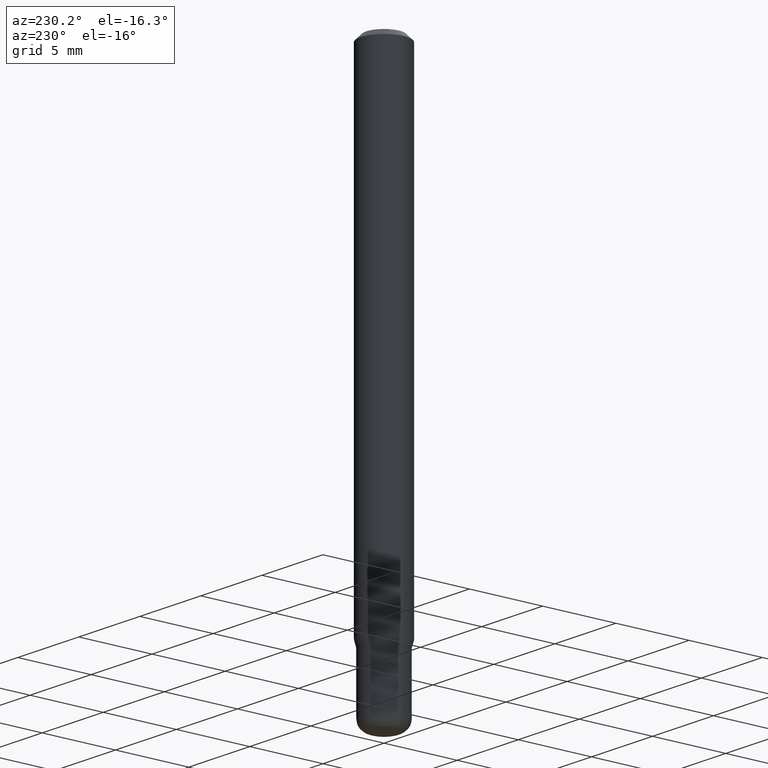
[diagram: clean part render]
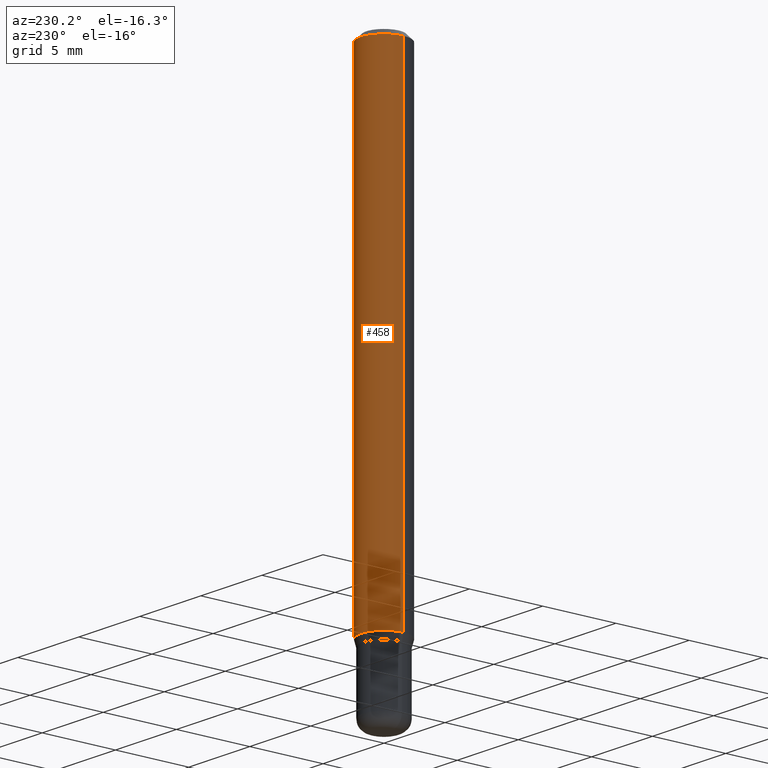
[diagram: same view with one face highlighted and labeled with its STEP entity id]
A machine part, auxiliary view. The second image highlights one B-rep face of the part: STEP entity #458.
In plain terms, the highlighted cylindrical surface (edge-blend (fillet) strip) has radius 1.5875 mm, axis along (-0, 0, 1).
Its self-contained STEP definition (entity closure, byte-faithful):
#2 = DIRECTION ( 'NONE',  ( -2.445468806185136597E-29, 3.491481338843145583E-15, 1.000000000000000000 ) ) ;
#4 = LINE ( 'NONE', #340, #284 ) ;
#18 = DIRECTION ( 'NONE',  ( -2.445468806185136597E-29, 3.491481338843145583E-15, 1.000000000000000000 ) ) ;
#31 = CARTESIAN_POINT ( 'NONE',  ( 0.000000000000000000, 0.000000000000000000, 0.000000000000000000 ) ) ;
#48 = CARTESIAN_POINT ( 'NONE',  ( -0.06250000000000000000, -1.848661397443869877E-15, -0.01499999999999970281 ) ) ;
#57 = VERTEX_POINT ( 'NONE', #372 ) ;
#63 = EDGE_CURVE ( 'NONE', #420, #277, #449, .T. ) ;
#80 = CARTESIAN_POINT ( 'NONE',  ( 3.175049348580787854E-29, -4.533128994505219090E-15, -1.298339745962156178 ) ) ;
#82 = CARTESIAN_POINT ( 'NONE',  ( 0.06250000000000000000, -4.969564161860609971E-15, -1.298339745962156178 ) ) ;
#97 = EDGE_LOOP ( 'NONE', ( #369, #268, #312, #221 ) ) ;
#101 = CIRCLE ( 'NONE', #514, 0.06250000000000000000 ) ;
#114 = DIRECTION ( 'NONE',  ( 1.000000000000000000, -6.982962677686266711E-15, 4.876176775795935793E-29 ) ) ;
#119 = DIRECTION ( 'NONE',  ( -2.445468806185136877E-29, 3.491481338843145188E-15, 1.000000000000000000 ) ) ;
#130 = DIRECTION ( 'NONE',  ( 1.000000000000000000, -6.982962677686266711E-15, 0.000000000000000000 ) ) ;
#139 = EDGE_CURVE ( 'NONE', #420, #57, #101, .T. ) ;
#158 = CARTESIAN_POINT ( 'NONE',  ( 0.06250000000000000000, -4.888073874380378612E-16, -0.01499999999999970281 ) ) ;
#192 = DIRECTION ( 'NONE',  ( -2.445468806185136877E-29, 3.491481338843145188E-15, 1.000000000000000000 ) ) ;
#198 = AXIS2_PLACEMENT_3D ( 'NONE', #31, #2, #114 ) ;
#221 = ORIENTED_EDGE ( 'NONE', *, *, #63, .F. ) ;
#226 = DIRECTION ( 'NONE',  ( -2.445468806185136597E-29, 3.491481338843145583E-15, 1.000000000000000000 ) ) ;
#266 = EDGE_CURVE ( 'NONE', #57, #427, #4, .T. ) ;
#268 = ORIENTED_EDGE ( 'NONE', *, *, #266, .T. ) ;
#277 = VERTEX_POINT ( 'NONE', #158 ) ;
#284 = VECTOR ( 'NONE', #119, 39.37007874015748143 ) ;
#312 = ORIENTED_EDGE ( 'NONE', *, *, #362, .F. ) ;
#340 = CARTESIAN_POINT ( 'NONE',  ( -0.06250000000000000000, 4.440892098500626162E-16, -3.074334431409316114E-30 ) ) ;
#362 = EDGE_CURVE ( 'NONE', #277, #427, #512, .T. ) ;
#369 = ORIENTED_EDGE ( 'NONE', *, *, #139, .T. ) ;
#372 = CARTESIAN_POINT ( 'NONE',  ( -0.06250000000000000000, -4.089039784655156474E-15, -1.298339745962156178 ) ) ;
#396 = DIRECTION ( 'NONE',  ( 1.000000000000000000, -6.982962677686262766E-15, 0.000000000000000000 ) ) ;
#412 = AXIS2_PLACEMENT_3D ( 'NONE', #467, #18, #130 ) ;
#420 = VERTEX_POINT ( 'NONE', #82 ) ;
#427 = VERTEX_POINT ( 'NONE', #48 ) ;
#445 = FACE_OUTER_BOUND ( 'NONE', #97, .T. ) ;
#449 = LINE ( 'NONE', #513, #493 ) ;
#458 = ADVANCED_FACE ( 'NONE', ( #445 ), #481, .T. ) ;
#467 = CARTESIAN_POINT ( 'NONE',  ( 3.668203209277632395E-31, -5.237222008264614861E-17, -0.01499999999999970281 ) ) ;
#481 = CYLINDRICAL_SURFACE ( 'NONE', #198, 0.06250000000000000000 ) ;
#493 = VECTOR ( 'NONE', #192, 39.37007874015748143 ) ;
#512 = CIRCLE ( 'NONE', #412, 0.06250000000000000000 ) ;
#513 = CARTESIAN_POINT ( 'NONE',  ( 0.06250000000000000000, -4.364351673553916694E-16, 3.047610484872459871E-30 ) ) ;
#514 = AXIS2_PLACEMENT_3D ( 'NONE', #80, #226, #396 ) ;